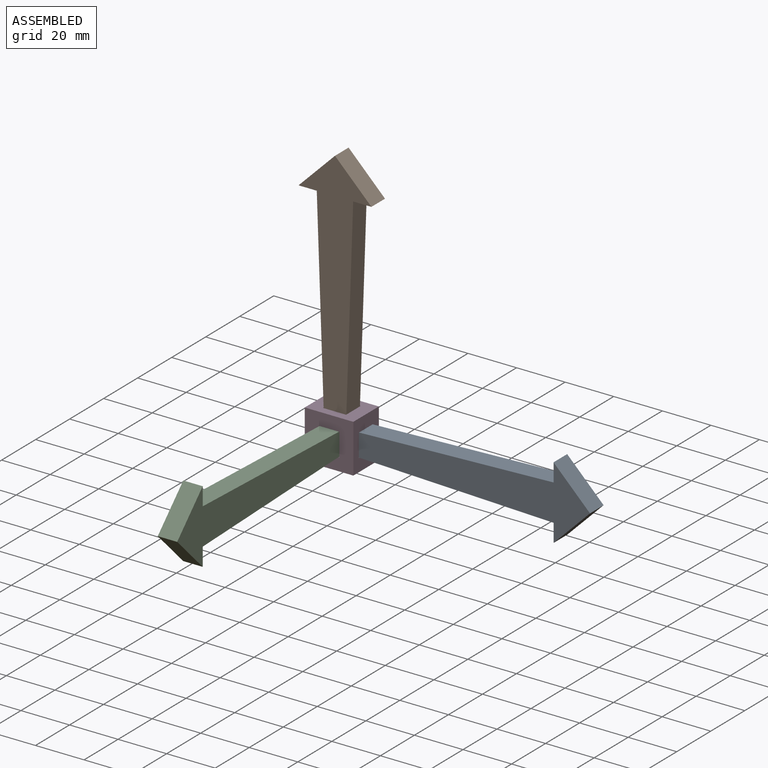
[diagram: assembled view]
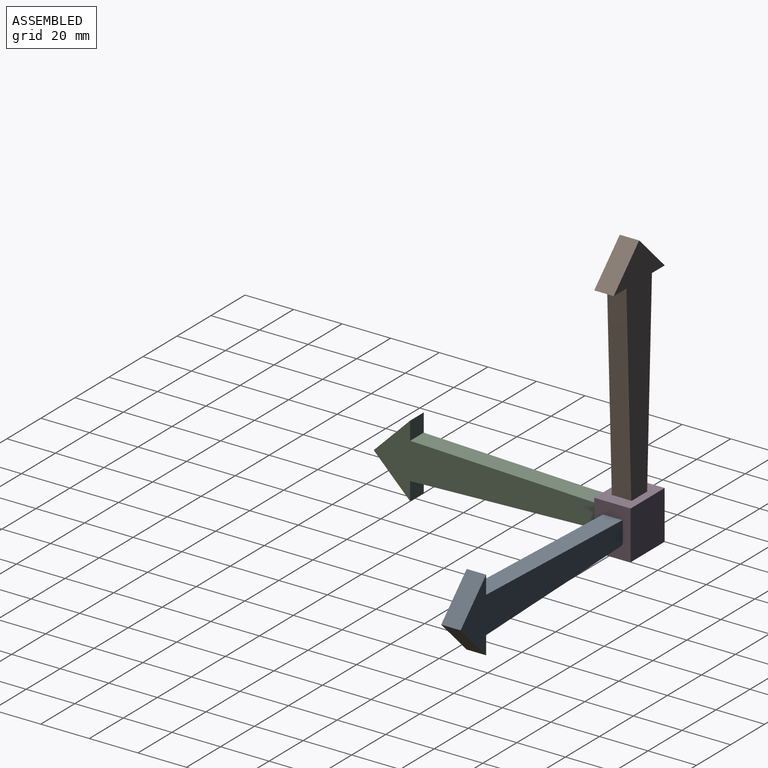
[diagram: assembled view, second angle]
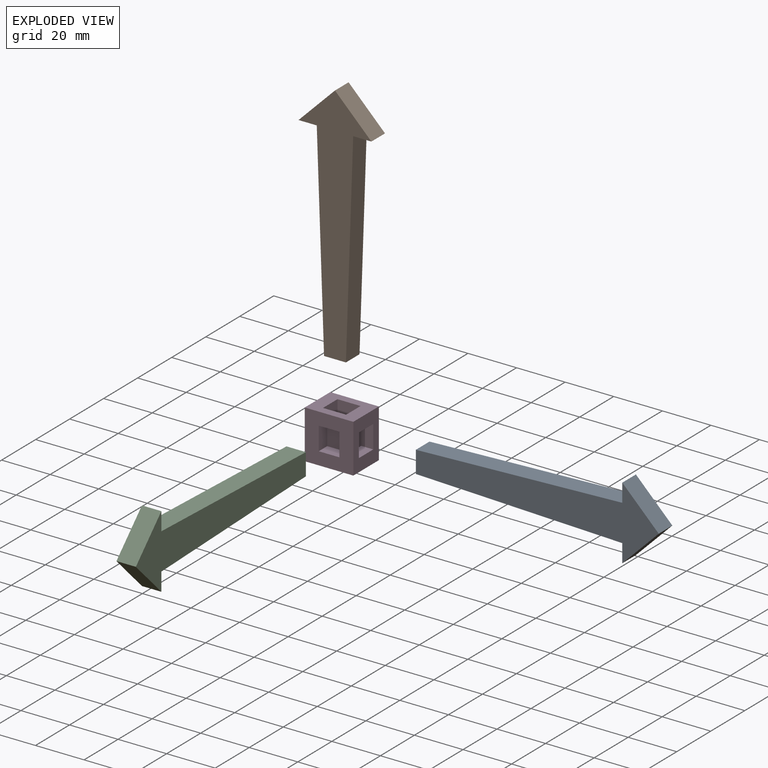
[diagram: exploded view]
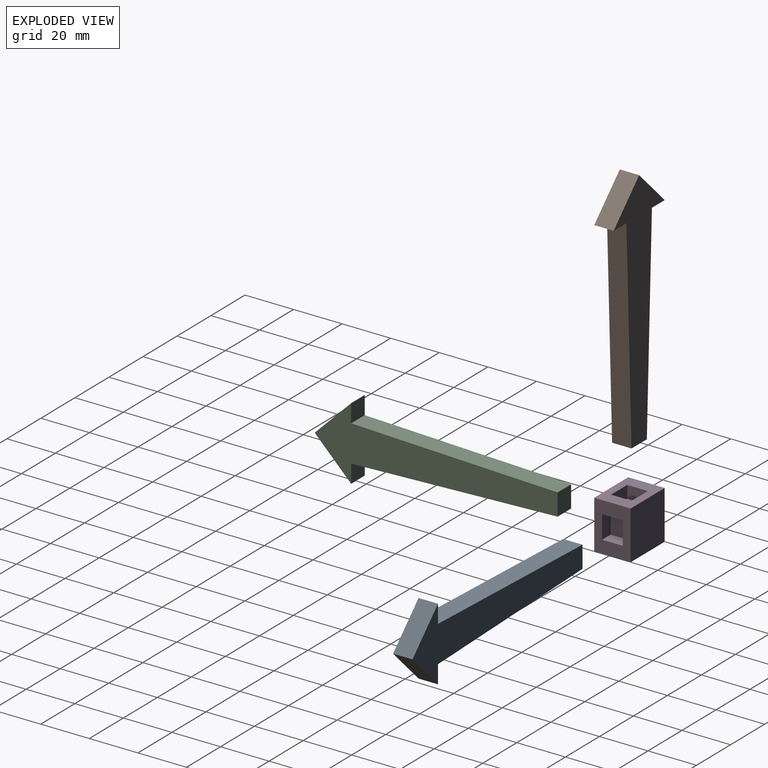
[diagram: exploded view, second angle]
ASSEMBLY  parts=4 mates=3
PART A: 9 faces, bbox 100x8x30 mm
  f0: plane 85x8mm, normal (-0.04,0,1), area 680.4mm2, adj f1,f6,f7,f8
  f1: plane 9x8mm, normal (-1,0,0), area 72mm2, adj f0,f2,f7,f8
  f2: plane 85x8mm, normal (-0.04,0,-1), area 680.4mm2, adj f1,f3,f7,f8
  f3: plane 8x7.5mm, normal (-1,0,0), area 60mm2, adj f2,f4,f7,f8
  f4: plane 15x15mm, normal (0.71,0,-0.71), area 169.7mm2, adj f3,f5,f7,f8
  f5: plane 15x15mm, normal (0.71,0,0.71), area 169.7mm2, adj f4,f6,f7,f8
  f6: plane 8x7.5mm, normal (-1,0,0), area 60mm2, adj f0,f5,f7,f8
  f7: plane 100x30mm, normal (0,-1,0), area 1245mm2, adj f0,f1,f2,f3,f4,f5,f6
  f8: plane 100x30mm, normal (0,1,0), area 1245mm2, adj f0,f1,f2,f3,f4,f5,f6
PART B: same geometry as A
PART C: same geometry as A
PART D: 21 faces, bbox 20x20x15 mm
  f0: plane 20x15mm, normal (1,0,0), area 219.2mm2, adj f1,f2,f3,f5,f16,f17,f18,f19
  f1: plane 20x15mm, normal (0,-1,0), area 219.2mm2, adj f0,f2,f4,f5,f11,f12,f13,f14
  f2: plane 20x20mm, normal (0,0,1), area 319.2mm2, adj f0,f1,f3,f4,f6,f7,f8,f9
  f3: plane 20x15mm, normal (0,1,0), area 300mm2, adj f0,f2,f4,f5
  f4: plane 20x15mm, normal (-1,0,0), area 300mm2, adj f1,f2,f3,f5
  f5: plane 20x20mm, normal (0,0,-1), area 400mm2, adj f0,f1,f3,f4
  f6: plane 9.5x5mm, normal (0,-1,0), area 47.5mm2, adj f2,f7,f9,f10
  f7: plane 8.5x5mm, normal (1,0,0), area 42.5mm2, adj f2,f6,f8,f10
  f8: plane 9.5x5mm, normal (0,1,0), area 47.5mm2, adj f2,f7,f9,f10
  f9: plane 8.5x5mm, normal (-1,0,0), area 42.5mm2, adj f2,f6,f8,f10
  f10: plane 9.5x8.5mm, normal (0,0,1), area 80.8mm2, adj f6,f7,f8,f9
  f11: plane 9.5x5mm, normal (0,0,-1), area 47.5mm2, adj f1,f12,f14,f15
  f12: plane 8.5x5mm, normal (1,0,0), area 42.5mm2, adj f1,f11,f13,f15
  f13: plane 9.5x5mm, normal (0,0,1), area 47.5mm2, adj f1,f12,f14,f15
  f14: plane 8.5x5mm, normal (-1,0,0), area 42.5mm2, adj f1,f11,f13,f15
  f15: plane 9.5x8.5mm, normal (0,-1,0), area 80.8mm2, adj f11,f12,f13,f14
  f16: plane 9.5x5mm, normal (0,0,-1), area 47.5mm2, adj f0,f17,f19,f20
  f17: plane 8.5x5mm, normal (0,1,0), area 42.5mm2, adj f0,f16,f18,f20
  f18: plane 9.5x5mm, normal (0,0,1), area 47.5mm2, adj f0,f17,f19,f20
  f19: plane 8.5x5mm, normal (0,-1,0), area 42.5mm2, adj f0,f16,f18,f20
  f20: plane 9.5x8.5mm, normal (1,0,0), area 80.8mm2, adj f16,f17,f18,f19
PLACE A t=(-70.83,-28.72,-107.22)mm
PLACE B rot(axis=(0,-1,0),90deg) t=(-175.83,-28.72,-2.22)mm
PLACE C rot(axis=(-0.71,0.71,0),180deg) t=(-175.83,-131.22,-107.22)mm
PLACE D rot(axis=(0.58,-0.58,0.58),120deg) t=(-175.83,-28.72,-107.22)mm
MATE fastened D.f15 <-> A.f1  axis (1,0,0) through (-170.83,-28.72,-107.22)mm
MATE fastened C.f1 <-> D.f10  axis (0,1,0) through (-175.83,-31.22,-107.22)mm
MATE fastened D.f20 <-> B.f1  axis (0,0,1) through (-175.83,-28.72,-102.22)mm
